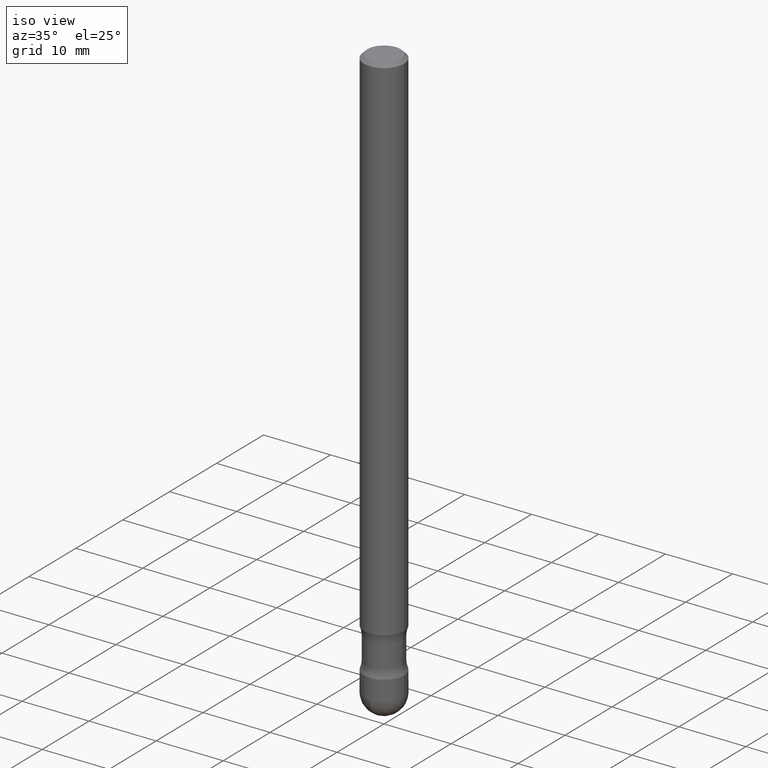
[diagram: clean part render]
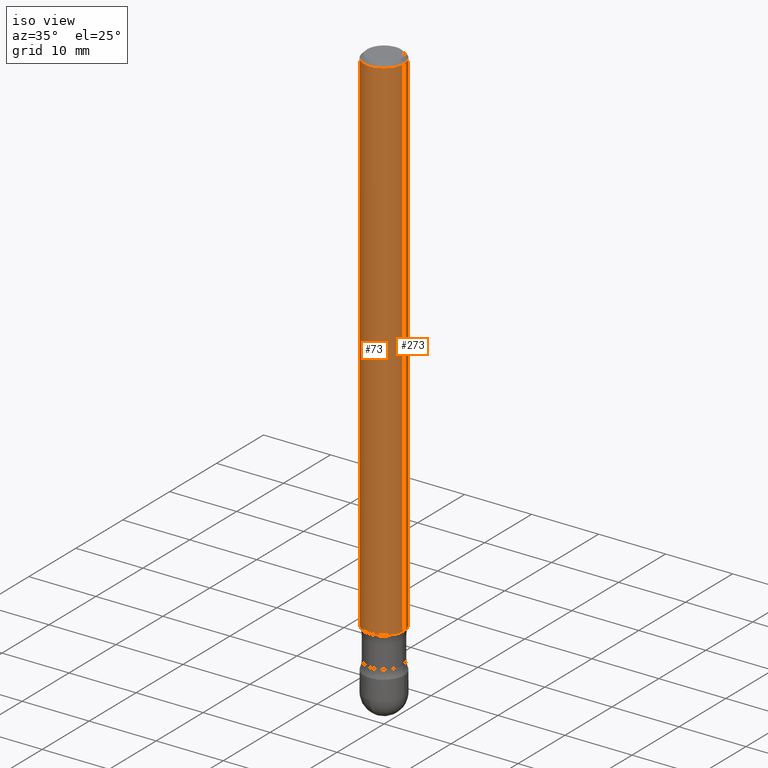
[diagram: same view with one multi-face feature highlighted, each face labeled with its STEP entity id]
A machine part, iso view. The highlighted faces form ONE feature: a constant-radius fillet chain: 2 tangent blend faces with common blend radius 2.9997 mm. The faces share edges in the B-rep.
Their STEP definitions:
[1] entity #73 (Cylinder):
#5 = ORIENTED_EDGE ( 'NONE', *, *, #475, .T. ) ;
#37 = CYLINDRICAL_SURFACE ( 'NONE', #305, 0.1180999999999998579 ) ;
#73 = ADVANCED_FACE ( 'NONE', ( #348 ), #37, .T. ) ;
#74 = CIRCLE ( 'NONE', #422, 0.1181000000000000383 ) ;
#89 = DIRECTION ( 'NONE',  ( -1.000000000000000000, 6.982962677686270655E-15, 0.000000000000000000 ) ) ;
#98 = CARTESIAN_POINT ( 'NONE',  ( 4.890937612370354609E-31, -6.982962677686407473E-17, -0.02000000000000033348 ) ) ;
#147 = CIRCLE ( 'NONE', #247, 0.1180999999999996913 ) ;
#157 = DIRECTION ( 'NONE',  ( 2.445468806185136597E-29, -3.491481338843145583E-15, -1.000000000000000000 ) ) ;
#188 = CARTESIAN_POINT ( 'NONE',  ( 0.1181000000000000522, -6.137352466276741178E-15, -3.031500000000000750 ) ) ;
#226 = LINE ( 'NONE', #421, #481 ) ;
#228 = VERTEX_POINT ( 'NONE', #387 ) ;
#233 = DIRECTION ( 'NONE',  ( -1.000000000000000000, 6.982962677686265922E-15, 0.000000000000000000 ) ) ;
#247 = AXIS2_PLACEMENT_3D ( 'NONE', #98, #337, #233 ) ;
#255 = CARTESIAN_POINT ( 'NONE',  ( 7.991058417971169471E-29, -1.140911357093774486E-14, -3.267699999999999605 ) ) ;
#259 = EDGE_CURVE ( 'NONE', #458, #491, #74, .T. ) ;
#261 = CARTESIAN_POINT ( 'NONE',  ( -0.1180999999999998579, -1.058442567870299818E-14, -3.267699999999999605 ) ) ;
#305 = AXIS2_PLACEMENT_3D ( 'NONE', #255, #157, #434 ) ;
#314 = EDGE_CURVE ( 'NONE', #228, #491, #527, .T. ) ;
#318 = EDGE_LOOP ( 'NONE', ( #473, #5, #335, #338 ) ) ;
#330 = VERTEX_POINT ( 'NONE', #400 ) ;
#335 = ORIENTED_EDGE ( 'NONE', *, *, #314, .T. ) ;
#337 = DIRECTION ( 'NONE',  ( 2.445468806185136597E-29, -3.491481338843145583E-15, -1.000000000000000000 ) ) ;
#338 = ORIENTED_EDGE ( 'NONE', *, *, #259, .F. ) ;
#348 = FACE_OUTER_BOUND ( 'NONE', #318, .T. ) ;
#356 = DIRECTION ( 'NONE',  ( 2.445468806185136597E-29, -3.491481338843145583E-15, -1.000000000000000000 ) ) ;
#387 = CARTESIAN_POINT ( 'NONE',  ( -0.1180999999999996913, 7.548582654578818090E-16, -0.02000000000000033348 ) ) ;
#400 = CARTESIAN_POINT ( 'NONE',  ( 0.1180999999999996913, -8.800544403136798514E-16, -0.02000000000000033348 ) ) ;
#415 = DIRECTION ( 'NONE',  ( 2.445468806185136877E-29, -3.491481338843145188E-15, -1.000000000000000000 ) ) ;
#421 = CARTESIAN_POINT ( 'NONE',  ( 0.1180999999999998579, -1.221933838447456240E-14, -3.267699999999999605 ) ) ;
#422 = AXIS2_PLACEMENT_3D ( 'NONE', #532, #356, #89 ) ;
#434 = DIRECTION ( 'NONE',  ( -1.000000000000000000, 6.982962677686265133E-15, 0.000000000000000000 ) ) ;
#450 = VECTOR ( 'NONE', #454, 39.37007874015748143 ) ;
#454 = DIRECTION ( 'NONE',  ( 2.445468806185136877E-29, -3.491481338843145188E-15, -1.000000000000000000 ) ) ;
#458 = VERTEX_POINT ( 'NONE', #188 ) ;
#465 = CARTESIAN_POINT ( 'NONE',  ( -0.1181000000000000383, -9.759737786468249915E-15, -3.031500000000000750 ) ) ;
#473 = ORIENTED_EDGE ( 'NONE', *, *, #502, .F. ) ;
#475 = EDGE_CURVE ( 'NONE', #330, #228, #147, .T. ) ;
#481 = VECTOR ( 'NONE', #415, 39.37007874015748143 ) ;
#491 = VERTEX_POINT ( 'NONE', #465 ) ;
#502 = EDGE_CURVE ( 'NONE', #330, #458, #226, .T. ) ;
#527 = LINE ( 'NONE', #261, #450 ) ;
#532 = CARTESIAN_POINT ( 'NONE',  ( 7.413438685950242831E-29, -1.058442567870299818E-14, -3.031500000000000750 ) ) ;
[2] entity #273 (Cylinder):
#7 = ORIENTED_EDGE ( 'NONE', *, *, #158, .F. ) ;
#10 = DIRECTION ( 'NONE',  ( -1.000000000000000000, 6.982962677686265922E-15, 0.000000000000000000 ) ) ;
#52 = DIRECTION ( 'NONE',  ( 2.445468806185136597E-29, -3.491481338843145583E-15, -1.000000000000000000 ) ) ;
#56 = AXIS2_PLACEMENT_3D ( 'NONE', #523, #522, #203 ) ;
#158 = EDGE_CURVE ( 'NONE', #491, #458, #367, .T. ) ;
#188 = CARTESIAN_POINT ( 'NONE',  ( 0.1181000000000000522, -6.137352466276741178E-15, -3.031500000000000750 ) ) ;
#195 = EDGE_LOOP ( 'NONE', ( #222, #284, #7, #444 ) ) ;
#203 = DIRECTION ( 'NONE',  ( -1.000000000000000000, 6.982962677686270655E-15, 0.000000000000000000 ) ) ;
#222 = ORIENTED_EDGE ( 'NONE', *, *, #319, .T. ) ;
#226 = LINE ( 'NONE', #421, #481 ) ;
#228 = VERTEX_POINT ( 'NONE', #387 ) ;
#261 = CARTESIAN_POINT ( 'NONE',  ( -0.1180999999999998579, -1.058442567870299818E-14, -3.267699999999999605 ) ) ;
#273 = ADVANCED_FACE ( 'NONE', ( #410 ), #443, .T. ) ;
#284 = ORIENTED_EDGE ( 'NONE', *, *, #502, .T. ) ;
#287 = AXIS2_PLACEMENT_3D ( 'NONE', #322, #52, #10 ) ;
#307 = CARTESIAN_POINT ( 'NONE',  ( 7.991058417971169471E-29, -1.140911357093774486E-14, -3.267699999999999605 ) ) ;
#314 = EDGE_CURVE ( 'NONE', #228, #491, #527, .T. ) ;
#316 = DIRECTION ( 'NONE',  ( 2.445468806185136597E-29, -3.491481338843145583E-15, -1.000000000000000000 ) ) ;
#319 = EDGE_CURVE ( 'NONE', #228, #330, #520, .T. ) ;
#322 = CARTESIAN_POINT ( 'NONE',  ( 4.890937612370354609E-31, -6.982962677686407473E-17, -0.02000000000000033348 ) ) ;
#330 = VERTEX_POINT ( 'NONE', #400 ) ;
#364 = DIRECTION ( 'NONE',  ( -1.000000000000000000, 6.982962677686265133E-15, 0.000000000000000000 ) ) ;
#367 = CIRCLE ( 'NONE', #56, 0.1181000000000000383 ) ;
#387 = CARTESIAN_POINT ( 'NONE',  ( -0.1180999999999996913, 7.548582654578818090E-16, -0.02000000000000033348 ) ) ;
#400 = CARTESIAN_POINT ( 'NONE',  ( 0.1180999999999996913, -8.800544403136798514E-16, -0.02000000000000033348 ) ) ;
#410 = FACE_OUTER_BOUND ( 'NONE', #195, .T. ) ;
#415 = DIRECTION ( 'NONE',  ( 2.445468806185136877E-29, -3.491481338843145188E-15, -1.000000000000000000 ) ) ;
#421 = CARTESIAN_POINT ( 'NONE',  ( 0.1180999999999998579, -1.221933838447456240E-14, -3.267699999999999605 ) ) ;
#443 = CYLINDRICAL_SURFACE ( 'NONE', #480, 0.1180999999999998579 ) ;
#444 = ORIENTED_EDGE ( 'NONE', *, *, #314, .F. ) ;
#450 = VECTOR ( 'NONE', #454, 39.37007874015748143 ) ;
#454 = DIRECTION ( 'NONE',  ( 2.445468806185136877E-29, -3.491481338843145188E-15, -1.000000000000000000 ) ) ;
#458 = VERTEX_POINT ( 'NONE', #188 ) ;
#465 = CARTESIAN_POINT ( 'NONE',  ( -0.1181000000000000383, -9.759737786468249915E-15, -3.031500000000000750 ) ) ;
#480 = AXIS2_PLACEMENT_3D ( 'NONE', #307, #316, #364 ) ;
#481 = VECTOR ( 'NONE', #415, 39.37007874015748143 ) ;
#491 = VERTEX_POINT ( 'NONE', #465 ) ;
#502 = EDGE_CURVE ( 'NONE', #330, #458, #226, .T. ) ;
#520 = CIRCLE ( 'NONE', #287, 0.1180999999999996913 ) ;
#522 = DIRECTION ( 'NONE',  ( 2.445468806185136597E-29, -3.491481338843145583E-15, -1.000000000000000000 ) ) ;
#523 = CARTESIAN_POINT ( 'NONE',  ( 7.413438685950242831E-29, -1.058442567870299818E-14, -3.031500000000000750 ) ) ;
#527 = LINE ( 'NONE', #261, #450 ) ;